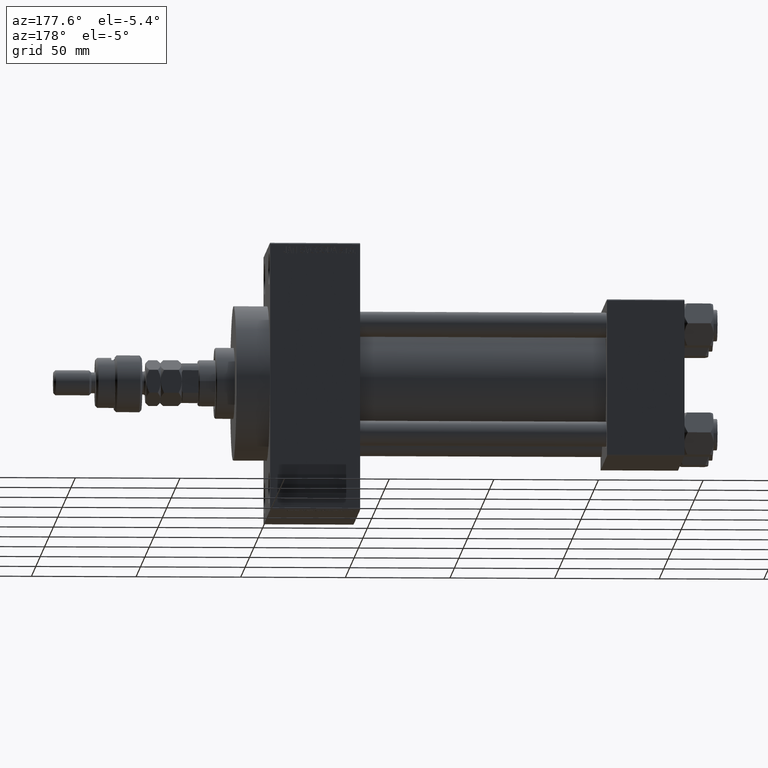
[diagram: clean part render]
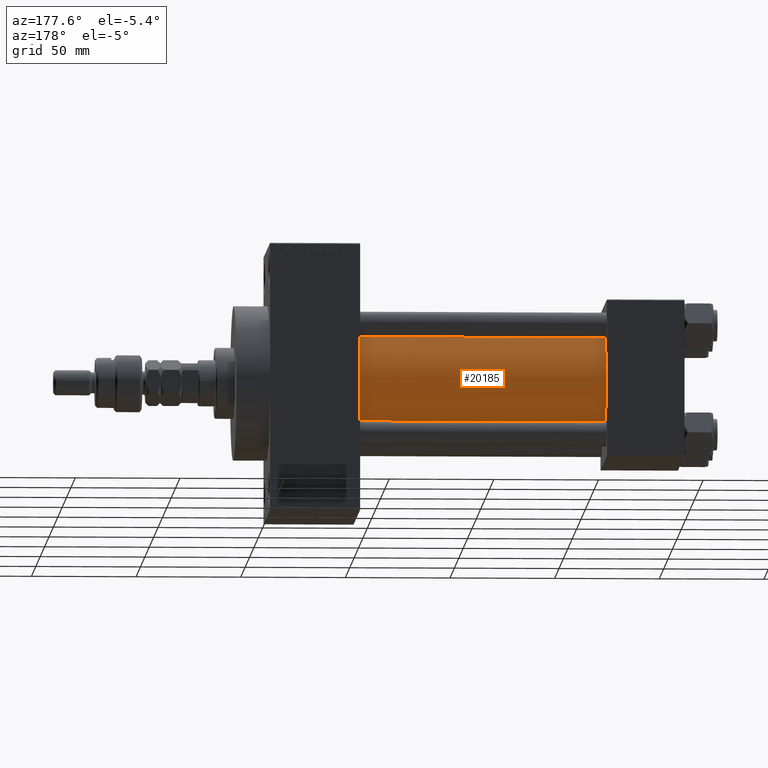
[diagram: same view with one face highlighted and labeled with its STEP entity id]
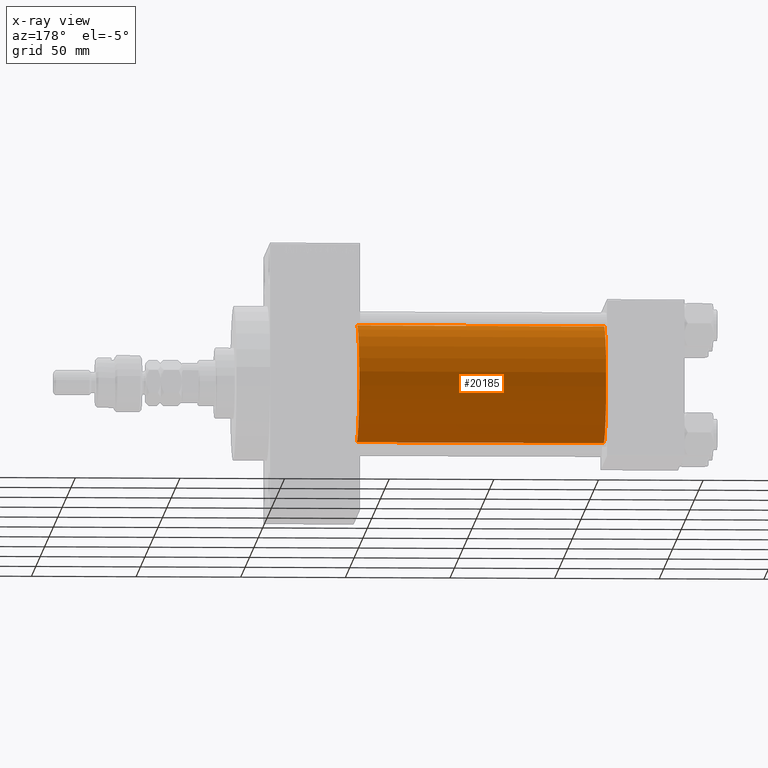
[diagram: x-ray of the same camera — body ghosted, the highlighted face saturated]
A machine part, auxiliary view. The second image highlights one B-rep face of the part: STEP entity #20185.
The next image is the same camera in x-ray: the body ghosted, the highlighted face saturated — about 0% of this face is hidden behind the body in this view.
In plain terms, the highlighted cylindrical surface (partial cylindrical patch) has radius 28 mm, axis along (-1, -0, -0).
Its self-contained STEP definition (entity closure, byte-faithful):
#755 = EDGE_CURVE ( 'NONE', #13162, #10911, #12501, .T. ) ;
#1323 = CARTESIAN_POINT ( 'NONE',  ( 37.00000000000000711, 8.269258236473784371E-16, -28.00000000000000000 ) ) ;
#2712 = CARTESIAN_POINT ( 'NONE',  ( 155.0000000000000000, 8.269258236473784371E-16, -28.00000000000000000 ) ) ;
#4834 = CARTESIAN_POINT ( 'NONE',  ( 37.00000000000000711, -2.602085213965210642E-15, 0.000000000000000000 ) ) ;
#5211 = AXIS2_PLACEMENT_3D ( 'NONE', #11187, #23085, #30421 ) ;
#6365 = EDGE_CURVE ( 'NONE', #13162, #29273, #16060, .T. ) ;
#7146 = CYLINDRICAL_SURFACE ( 'NONE', #45380, 28.00000000000000000 ) ;
#8216 = DIRECTION ( 'NONE',  ( -1.000000000000000000, -0.000000000000000000, -0.000000000000000000 ) ) ;
#9441 = ORIENTED_EDGE ( 'NONE', *, *, #13952, .T. ) ;
#10268 = EDGE_CURVE ( 'NONE', #10911, #43951, #44564, .T. ) ;
#10911 = VERTEX_POINT ( 'NONE', #44384 ) ;
#11182 = DIRECTION ( 'NONE',  ( 0.000000000000000000, 0.000000000000000000, 1.000000000000000000 ) ) ;
#11187 = CARTESIAN_POINT ( 'NONE',  ( 155.0000000000000000, -2.602085213965210642E-15, 0.000000000000000000 ) ) ;
#11429 = DIRECTION ( 'NONE',  ( -1.000000000000000000, -0.000000000000000000, -0.000000000000000000 ) ) ;
#12501 = CIRCLE ( 'NONE', #5211, 28.00000000000000000 ) ;
#13162 = VERTEX_POINT ( 'NONE', #2712 ) ;
#13952 = EDGE_CURVE ( 'NONE', #29273, #43951, #36266, .T. ) ;
#16060 = LINE ( 'NONE', #38313, #36930 ) ;
#20185 = ADVANCED_FACE ( 'NONE', ( #42276 ), #7146, .T. ) ;
#20835 = ORIENTED_EDGE ( 'NONE', *, *, #10268, .F. ) ;
#23085 = DIRECTION ( 'NONE',  ( 1.000000000000000000, 0.000000000000000000, 0.000000000000000000 ) ) ;
#23577 = DIRECTION ( 'NONE',  ( 0.000000000000000000, 0.000000000000000000, 1.000000000000000000 ) ) ;
#24318 = DIRECTION ( 'NONE',  ( 1.000000000000000000, -0.000000000000000000, 0.000000000000000000 ) ) ;
#25367 = CARTESIAN_POINT ( 'NONE',  ( 155.0000000000000000, -2.602085213965210642E-15, 28.00000000000000000 ) ) ;
#27063 = ORIENTED_EDGE ( 'NONE', *, *, #6365, .T. ) ;
#27202 = EDGE_LOOP ( 'NONE', ( #35001, #27063, #9441, #20835 ) ) ;
#29273 = VERTEX_POINT ( 'NONE', #1323 ) ;
#30417 = CARTESIAN_POINT ( 'NONE',  ( 155.0000000000000000, -2.602085213965210642E-15, 0.000000000000000000 ) ) ;
#30421 = DIRECTION ( 'NONE',  ( 0.000000000000000000, 0.000000000000000000, -1.000000000000000000 ) ) ;
#30453 = CARTESIAN_POINT ( 'NONE',  ( 37.00000000000000711, -2.602085213965210642E-15, 28.00000000000000000 ) ) ;
#34522 = VECTOR ( 'NONE', #48111, 1000.000000000000000 ) ;
#35001 = ORIENTED_EDGE ( 'NONE', *, *, #755, .F. ) ;
#36266 = CIRCLE ( 'NONE', #37874, 28.00000000000000000 ) ;
#36930 = VECTOR ( 'NONE', #8216, 1000.000000000000000 ) ;
#37874 = AXIS2_PLACEMENT_3D ( 'NONE', #4834, #24318, #23577 ) ;
#38313 = CARTESIAN_POINT ( 'NONE',  ( 155.0000000000000000, 8.269258236473784371E-16, -28.00000000000000000 ) ) ;
#42276 = FACE_OUTER_BOUND ( 'NONE', #27202, .T. ) ;
#43951 = VERTEX_POINT ( 'NONE', #30453 ) ;
#44384 = CARTESIAN_POINT ( 'NONE',  ( 155.0000000000000000, -2.602085213965210642E-15, 28.00000000000000000 ) ) ;
#44564 = LINE ( 'NONE', #25367, #34522 ) ;
#45380 = AXIS2_PLACEMENT_3D ( 'NONE', #30417, #11429, #11182 ) ;
#48111 = DIRECTION ( 'NONE',  ( -1.000000000000000000, -0.000000000000000000, -0.000000000000000000 ) ) ;